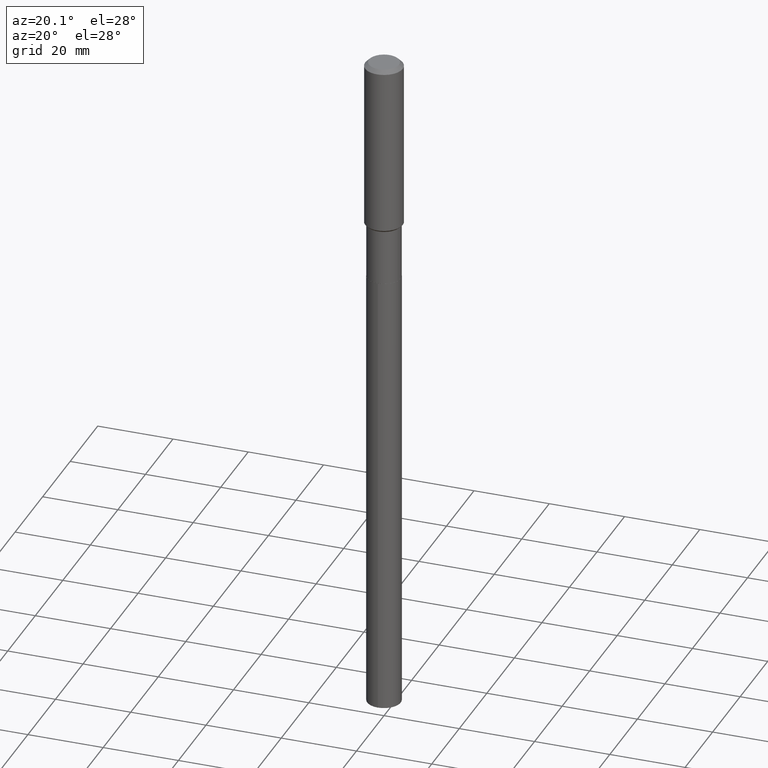
[diagram: clean part render]
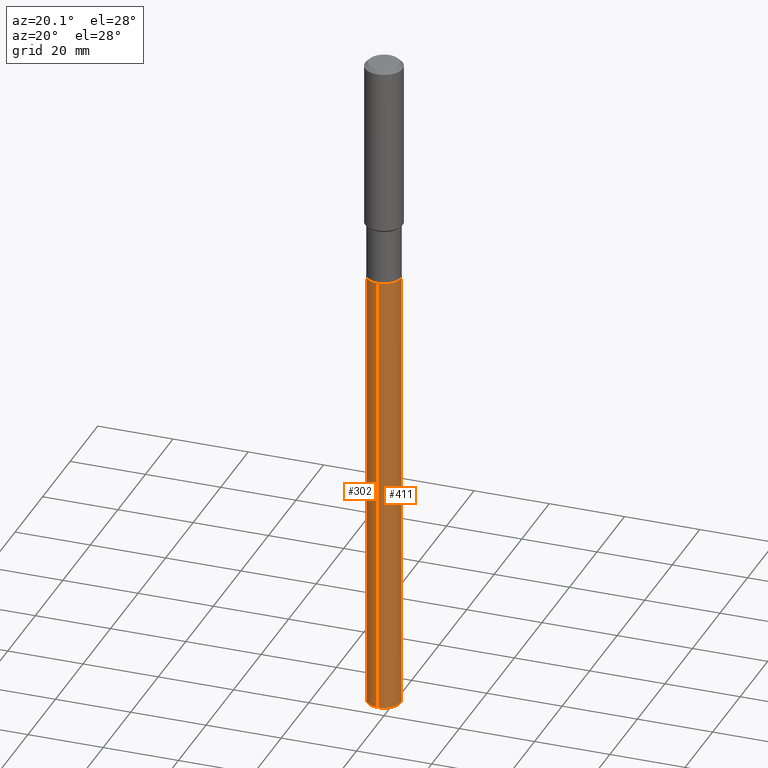
[diagram: same view with one multi-face feature highlighted, each face labeled with its STEP entity id]
A machine part, auxiliary view. The highlighted faces form ONE feature: a constant-radius fillet chain: 2 tangent blend faces with common blend radius 4.4501 mm. The faces share edges in the B-rep.
Their STEP definitions:
[1] entity #411 (Cylinder):
#21 = EDGE_CURVE ( 'NONE', #408, #461, #274, .T. ) ;
#31 = ORIENTED_EDGE ( 'NONE', *, *, #105, .T. ) ;
#38 = CIRCLE ( 'NONE', #316, 0.1751999999999999946 ) ;
#58 = AXIS2_PLACEMENT_3D ( 'NONE', #357, #312, #64 ) ;
#64 = DIRECTION ( 'NONE',  ( -6.982962677686265133E-15, -1.000000000000000000, 3.118547937972903315E-15 ) ) ;
#65 = ORIENTED_EDGE ( 'NONE', *, *, #234, .T. ) ;
#66 = DIRECTION ( 'NONE',  ( -6.982962677686265133E-15, -1.000000000000000000, 3.118547937972903315E-15 ) ) ;
#81 = EDGE_CURVE ( 'NONE', #461, #372, #38, .T. ) ;
#89 = DIRECTION ( 'NONE',  ( -2.445443136615839806E-29, 3.491518099127399075E-15, 1.000000000000000000 ) ) ;
#96 = CARTESIAN_POINT ( 'NONE',  ( -1.223415061130575699E-15, -0.1752000000000082935, -2.375599999999999490 ) ) ;
#102 = VECTOR ( 'NONE', #331, 39.37007874015748143 ) ;
#105 = EDGE_CURVE ( 'NONE', #265, #372, #187, .T. ) ;
#106 = DIRECTION ( 'NONE',  ( -2.445443136615840087E-29, 3.491518099127399469E-15, 1.000000000000000000 ) ) ;
#129 = AXIS2_PLACEMENT_3D ( 'NONE', #181, #140, #407 ) ;
#132 = FACE_OUTER_BOUND ( 'NONE', #328, .T. ) ;
#140 = DIRECTION ( 'NONE',  ( -2.445443136615840087E-29, 3.491518099127399469E-15, 1.000000000000000000 ) ) ;
#181 = CARTESIAN_POINT ( 'NONE',  ( 1.735289340526662042E-28, -2.477567931127258058E-14, -7.095986884672262462 ) ) ;
#182 = VECTOR ( 'NONE', #89, 39.37007874015748143 ) ;
#187 = LINE ( 'NONE', #455, #102 ) ;
#234 = EDGE_CURVE ( 'NONE', #408, #265, #427, .T. ) ;
#265 = VERTEX_POINT ( 'NONE', #445 ) ;
#269 = CYLINDRICAL_SURFACE ( 'NONE', #58, 0.1751999999999999946 ) ;
#274 = LINE ( 'NONE', #96, #182 ) ;
#280 = CARTESIAN_POINT ( 'NONE',  ( 1.244870873051869629E-15, 0.1751999999999916957, -2.375600000000000822 ) ) ;
#289 = ORIENTED_EDGE ( 'NONE', *, *, #81, .F. ) ;
#312 = DIRECTION ( 'NONE',  ( -2.445443136615840087E-29, 3.491518099127399469E-15, 1.000000000000000000 ) ) ;
#316 = AXIS2_PLACEMENT_3D ( 'NONE', #319, #106, #66 ) ;
#319 = CARTESIAN_POINT ( 'NONE',  ( 5.809455695973411003E-29, -8.294363068555777500E-15, -2.375600000000000378 ) ) ;
#328 = EDGE_LOOP ( 'NONE', ( #65, #31, #289, #486 ) ) ;
#331 = DIRECTION ( 'NONE',  ( -2.445443136615839806E-29, 3.491518099127399075E-15, 1.000000000000000000 ) ) ;
#357 = CARTESIAN_POINT ( 'NONE',  ( 5.809455695973411003E-29, -8.294363068555777500E-15, -2.375600000000000378 ) ) ;
#372 = VERTEX_POINT ( 'NONE', #280 ) ;
#398 = CARTESIAN_POINT ( 'NONE',  ( -1.223415061130459736E-15, -0.1752000000000246971, -7.095986884672260686 ) ) ;
#407 = DIRECTION ( 'NONE',  ( -6.982962677686265133E-15, -1.000000000000000000, 6.237095875945806629E-15 ) ) ;
#408 = VERTEX_POINT ( 'NONE', #398 ) ;
#411 = ADVANCED_FACE ( 'NONE', ( #132 ), #269, .T. ) ;
#427 = CIRCLE ( 'NONE', #129, 0.1751999999999999946 ) ;
#445 = CARTESIAN_POINT ( 'NONE',  ( 1.244870873051868445E-15, 0.1751999999999751256, -7.095986884672263351 ) ) ;
#455 = CARTESIAN_POINT ( 'NONE',  ( 1.244870873051753074E-15, 0.1751999999999916957, -2.375600000000000822 ) ) ;
#461 = VERTEX_POINT ( 'NONE', #480 ) ;
#480 = CARTESIAN_POINT ( 'NONE',  ( -1.223415061130575699E-15, -0.1752000000000082935, -2.375599999999999490 ) ) ;
#486 = ORIENTED_EDGE ( 'NONE', *, *, #21, .F. ) ;
[2] entity #302 (Cylinder):
#13 = DIRECTION ( 'NONE',  ( -6.982962677686265133E-15, -1.000000000000000000, 3.118547937972903315E-15 ) ) ;
#21 = EDGE_CURVE ( 'NONE', #408, #461, #274, .T. ) ;
#68 = AXIS2_PLACEMENT_3D ( 'NONE', #208, #391, #13 ) ;
#73 = CARTESIAN_POINT ( 'NONE',  ( 5.809455695973411003E-29, -8.294363068555777500E-15, -2.375600000000000378 ) ) ;
#89 = DIRECTION ( 'NONE',  ( -2.445443136615839806E-29, 3.491518099127399075E-15, 1.000000000000000000 ) ) ;
#96 = CARTESIAN_POINT ( 'NONE',  ( -1.223415061130575699E-15, -0.1752000000000082935, -2.375599999999999490 ) ) ;
#102 = VECTOR ( 'NONE', #331, 39.37007874015748143 ) ;
#105 = EDGE_CURVE ( 'NONE', #265, #372, #187, .T. ) ;
#122 = CIRCLE ( 'NONE', #249, 0.1751999999999999946 ) ;
#157 = DIRECTION ( 'NONE',  ( -6.982962677686265133E-15, -1.000000000000000000, 6.237095875945806629E-15 ) ) ;
#182 = VECTOR ( 'NONE', #89, 39.37007874015748143 ) ;
#187 = LINE ( 'NONE', #455, #102 ) ;
#208 = CARTESIAN_POINT ( 'NONE',  ( 5.809455695973411003E-29, -8.294363068555777500E-15, -2.375600000000000378 ) ) ;
#218 = ORIENTED_EDGE ( 'NONE', *, *, #332, .T. ) ;
#238 = CYLINDRICAL_SURFACE ( 'NONE', #68, 0.1751999999999999946 ) ;
#247 = ORIENTED_EDGE ( 'NONE', *, *, #21, .T. ) ;
#249 = AXIS2_PLACEMENT_3D ( 'NONE', #299, #335, #157 ) ;
#253 = EDGE_CURVE ( 'NONE', #372, #461, #283, .T. ) ;
#265 = VERTEX_POINT ( 'NONE', #445 ) ;
#270 = ORIENTED_EDGE ( 'NONE', *, *, #105, .F. ) ;
#274 = LINE ( 'NONE', #96, #182 ) ;
#278 = ORIENTED_EDGE ( 'NONE', *, *, #253, .F. ) ;
#280 = CARTESIAN_POINT ( 'NONE',  ( 1.244870873051869629E-15, 0.1751999999999916957, -2.375600000000000822 ) ) ;
#283 = CIRCLE ( 'NONE', #483, 0.1751999999999999946 ) ;
#286 = DIRECTION ( 'NONE',  ( -6.982962677686265133E-15, -1.000000000000000000, 3.118547937972903315E-15 ) ) ;
#299 = CARTESIAN_POINT ( 'NONE',  ( 1.735289340526662042E-28, -2.477567931127258058E-14, -7.095986884672262462 ) ) ;
#302 = ADVANCED_FACE ( 'NONE', ( #471 ), #238, .T. ) ;
#331 = DIRECTION ( 'NONE',  ( -2.445443136615839806E-29, 3.491518099127399075E-15, 1.000000000000000000 ) ) ;
#332 = EDGE_CURVE ( 'NONE', #265, #408, #122, .T. ) ;
#335 = DIRECTION ( 'NONE',  ( -2.445443136615840087E-29, 3.491518099127399469E-15, 1.000000000000000000 ) ) ;
#372 = VERTEX_POINT ( 'NONE', #280 ) ;
#391 = DIRECTION ( 'NONE',  ( -2.445443136615840087E-29, 3.491518099127399469E-15, 1.000000000000000000 ) ) ;
#398 = CARTESIAN_POINT ( 'NONE',  ( -1.223415061130459736E-15, -0.1752000000000246971, -7.095986884672260686 ) ) ;
#408 = VERTEX_POINT ( 'NONE', #398 ) ;
#445 = CARTESIAN_POINT ( 'NONE',  ( 1.244870873051868445E-15, 0.1751999999999751256, -7.095986884672263351 ) ) ;
#447 = EDGE_LOOP ( 'NONE', ( #270, #218, #247, #278 ) ) ;
#455 = CARTESIAN_POINT ( 'NONE',  ( 1.244870873051753074E-15, 0.1751999999999916957, -2.375600000000000822 ) ) ;
#461 = VERTEX_POINT ( 'NONE', #480 ) ;
#471 = FACE_OUTER_BOUND ( 'NONE', #447, .T. ) ;
#480 = CARTESIAN_POINT ( 'NONE',  ( -1.223415061130575699E-15, -0.1752000000000082935, -2.375599999999999490 ) ) ;
#481 = DIRECTION ( 'NONE',  ( -2.445443136615840087E-29, 3.491518099127399469E-15, 1.000000000000000000 ) ) ;
#483 = AXIS2_PLACEMENT_3D ( 'NONE', #73, #481, #286 ) ;